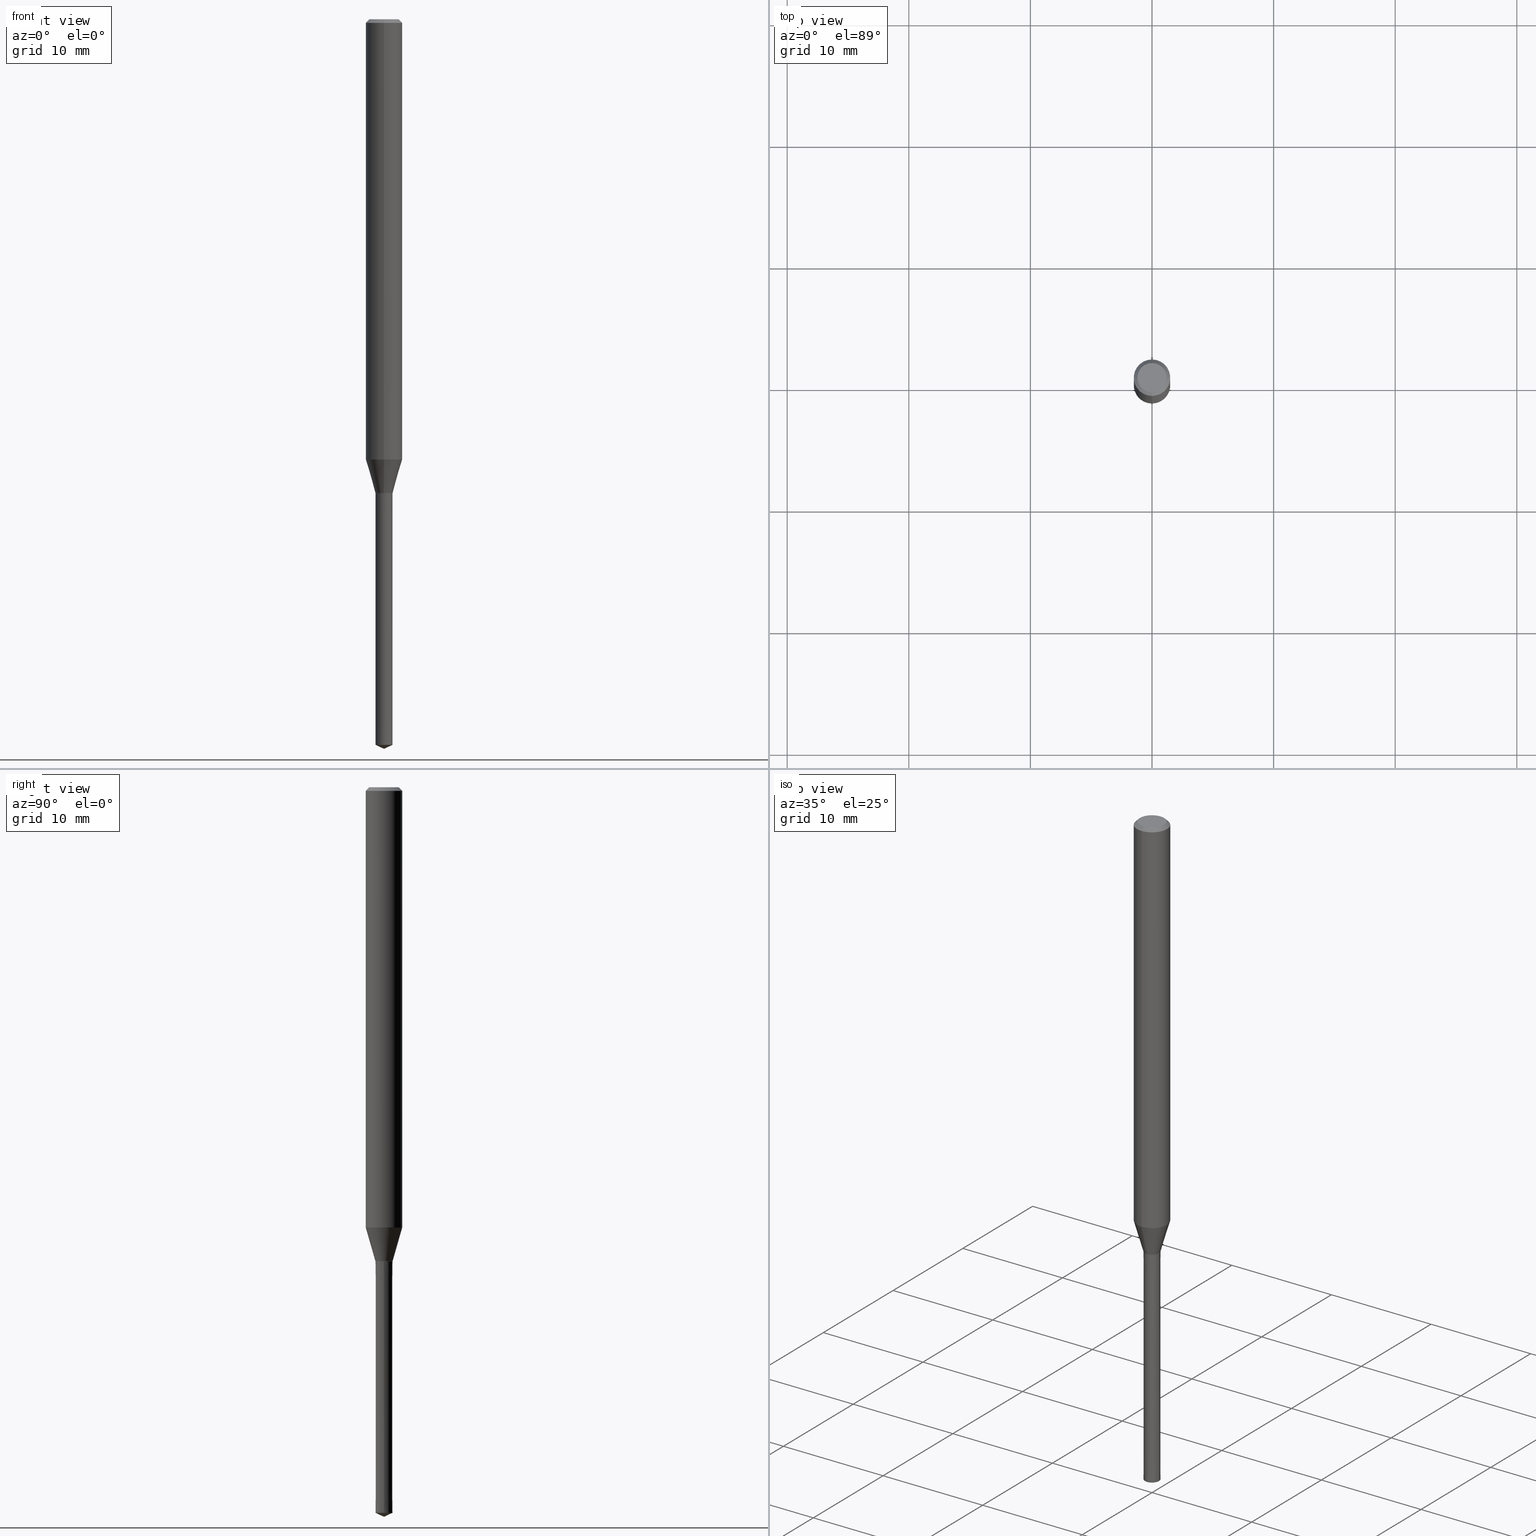
[diagram: canonical four-view strip — front | top / right | iso, engineering-drawing reading convention]
A machine part, canonical four-view strip (front | top / right | iso — engineering-drawing reading convention). The complete STEP part file that produces these views, byte-faithful:
ISO-10303-21;
HEADER;
FILE_DESCRIPTION(('no description'),'unknown implementation level');
FILE_NAME('UTDLX2140-210-Huellk.stp','  ',('CIMSOURCE GmbH'),('CADClick - KiM GmbH - www.kimweb.de'),'unknown preprocess','ACIS','unknown authorization');
FILE_SCHEMA(('automotive_design'));
ENDSEC;
DATA;
#1=MECHANICAL_DESIGN_GEOMETRIC_PRESENTATION_REPRESENTATION(' ',(#14,#15,#16,#17,#18,#19,#20,#21,#22,#23,#24,#25,#26,#27,#28,#29,#30,#31,#32,#33,#34,#35,#36,#37,#38,#39,#40,#41,#42,#43,#44,#45,#46,#47,#48,#49,#50,#51,#52,#53,#54,#55,#56,#57,#58,#59,#60,#61,#62,#63,#64,#65,#66,#67,#68,#69,#70,#71),#10);
#2=PRODUCT_DEFINITION_CONTEXT('',#72,'design');
#3=APPLICATION_PROTOCOL_DEFINITION('INTERNATIONAL STANDARD','automotive_design',1994,#72);
#4=PRODUCT_CATEGORY_RELATIONSHIP('NONE','NONE',#73,#74);
#5=SHAPE_DEFINITION_REPRESENTATION(#75,#76);
#6=PRODUCT_DEFINITION_CONTEXT('',#77,'design');
#7=APPLICATION_PROTOCOL_DEFINITION('INTERNATIONAL STANDARD','automotive_design',1994,#77);
#8=PRODUCT_CATEGORY_RELATIONSHIP('NONE','NONE',#78,#79);
#9=SHAPE_DEFINITION_REPRESENTATION(#80,#81);
#10= (GEOMETRIC_REPRESENTATION_CONTEXT(3)GLOBAL_UNCERTAINTY_ASSIGNED_CONTEXT((#84))GLOBAL_UNIT_ASSIGNED_CONTEXT((#86,#87,#88))REPRESENTATION_CONTEXT('NONE','WORKSPACE'));
#14=STYLED_ITEM('',(#90),#91);
#15=STYLED_ITEM('',(#92),#93);
#16=STYLED_ITEM('',(#94),#95);
#17=STYLED_ITEM('',(#96),#97);
#18=STYLED_ITEM('',(#98),#99);
#19=STYLED_ITEM('',(#100),#101);
#20=STYLED_ITEM('',(#102),#103);
#21=STYLED_ITEM('',(#104),#105);
#22=STYLED_ITEM('',(#106),#107);
#23=STYLED_ITEM('',(#108),#109);
#24=STYLED_ITEM('',(#110),#111);
#25=STYLED_ITEM('',(#112),#113);
#26=STYLED_ITEM('',(#114),#115);
#27=STYLED_ITEM('',(#116),#117);
#28=STYLED_ITEM('',(#118),#119);
#29=STYLED_ITEM('',(#120),#121);
#30=STYLED_ITEM('',(#122),#123);
#31=STYLED_ITEM('',(#124),#125);
#32=STYLED_ITEM('',(#126),#127);
#33=STYLED_ITEM('',(#128),#129);
#34=STYLED_ITEM('',(#130),#131);
#35=STYLED_ITEM('',(#132),#133);
#36=STYLED_ITEM('',(#134),#135);
#37=STYLED_ITEM('',(#136),#137);
#38=STYLED_ITEM('',(#138),#139);
#39=STYLED_ITEM('',(#140),#141);
#40=STYLED_ITEM('',(#142),#143);
#41=STYLED_ITEM('',(#144),#145);
#42=STYLED_ITEM('',(#146),#147);
#43=STYLED_ITEM('',(#148),#149);
#44=STYLED_ITEM('',(#150),#151);
#45=STYLED_ITEM('',(#152),#153);
#46=STYLED_ITEM('',(#154),#155);
#47=STYLED_ITEM('',(#156),#157);
#48=STYLED_ITEM('',(#158),#159);
#49=STYLED_ITEM('',(#160),#161);
#50=STYLED_ITEM('',(#162),#163);
#51=STYLED_ITEM('',(#164),#165);
#52=STYLED_ITEM('',(#166),#167);
#53=STYLED_ITEM('',(#168),#169);
#54=STYLED_ITEM('',(#170),#171);
#55=STYLED_ITEM('',(#172),#173);
#56=STYLED_ITEM('',(#174),#175);
#57=STYLED_ITEM('',(#176),#177);
#58=STYLED_ITEM('',(#178),#179);
#59=STYLED_ITEM('',(#180),#181);
#60=STYLED_ITEM('',(#182),#183);
#61=STYLED_ITEM('',(#184),#185);
#62=STYLED_ITEM('',(#186),#187);
#63=STYLED_ITEM('',(#188),#189);
#64=STYLED_ITEM('',(#190),#191);
#65=STYLED_ITEM('',(#192),#193);
#66=STYLED_ITEM('',(#194),#195);
#67=STYLED_ITEM('',(#196),#197);
#68=STYLED_ITEM('',(#198),#199);
#69=STYLED_ITEM('',(#200),#201);
#70=STYLED_ITEM('',(#202),#203);
#71=STYLED_ITEM('',(#204),#205);
#72=APPLICATION_CONTEXT(' ');
#73=PRODUCT_CATEGORY('part','NONE');
#74=PRODUCT_RELATED_PRODUCT_CATEGORY('detail',' ',(#206));
#75=PRODUCT_DEFINITION_SHAPE('NONE','NONE',#207);
#76=ADVANCED_BREP_SHAPE_REPRESENTATION('1',(#115,#208),#10);
#77=APPLICATION_CONTEXT(' ');
#78=PRODUCT_CATEGORY('part','NONE');
#79=PRODUCT_RELATED_PRODUCT_CATEGORY('detail',' ',(#209));
#80=PRODUCT_DEFINITION_SHAPE('NONE','NONE',#210);
#81=ADVANCED_BREP_SHAPE_REPRESENTATION('2',(#113,#211),#10);
#84=UNCERTAINTY_MEASURE_WITH_UNIT(LENGTH_MEASURE(1.0E-006),#86,'','');
#86= (CONVERSION_BASED_UNIT('MILLIMETRE',#214)LENGTH_UNIT()NAMED_UNIT(#217));
#87= (NAMED_UNIT(#219)PLANE_ANGLE_UNIT()SI_UNIT($,.RADIAN.));
#88= (NAMED_UNIT(#219)SOLID_ANGLE_UNIT()SI_UNIT($,.STERADIAN.));
#90=PRESENTATION_STYLE_ASSIGNMENT((#225));
#91=EDGE_CURVE('',#167,#139,#226,.T.);
#92=PRESENTATION_STYLE_ASSIGNMENT((#227));
#93=EDGE_CURVE('',#161,#123,#228,.T.);
#94=PRESENTATION_STYLE_ASSIGNMENT((#229));
#95=EDGE_CURVE('',#161,#135,#230,.T.);
#96=PRESENTATION_STYLE_ASSIGNMENT((#231));
#97=ADVANCED_FACE('',(#232),#233,.T.);
#98=PRESENTATION_STYLE_ASSIGNMENT((#234));
#99=VERTEX_POINT('',#235);
#100=PRESENTATION_STYLE_ASSIGNMENT((#236));
#101=VERTEX_POINT('',#237);
#102=PRESENTATION_STYLE_ASSIGNMENT((#238));
#103=EDGE_CURVE('',#139,#129,#239,.T.);
#104=PRESENTATION_STYLE_ASSIGNMENT((#240));
#105=ADVANCED_FACE('',(#241),#242,.T.);
#106=PRESENTATION_STYLE_ASSIGNMENT((#243));
#107=EDGE_CURVE('',#99,#169,#244,.T.);
#108=PRESENTATION_STYLE_ASSIGNMENT((#245));
#109=ADVANCED_FACE('',(#246),#247,.T.);
#110=PRESENTATION_STYLE_ASSIGNMENT((#248));
#111=ADVANCED_FACE('',(#249),#250,.T.);
#112=PRESENTATION_STYLE_ASSIGNMENT((#251));
#113=MANIFOLD_SOLID_BREP('2',#252);
#114=PRESENTATION_STYLE_ASSIGNMENT((#253));
#115=MANIFOLD_SOLID_BREP('1',#254);
#116=PRESENTATION_STYLE_ASSIGNMENT((#255));
#117=ADVANCED_FACE('',(#256),#257,.T.);
#118=PRESENTATION_STYLE_ASSIGNMENT((#258));
#119=EDGE_CURVE('',#101,#129,#259,.T.);
#120=PRESENTATION_STYLE_ASSIGNMENT((#260));
#121=EDGE_CURVE('',#99,#201,#261,.T.);
#122=PRESENTATION_STYLE_ASSIGNMENT((#262));
#123=VERTEX_POINT('',#263);
#124=PRESENTATION_STYLE_ASSIGNMENT((#264));
#125=ADVANCED_FACE('',(#265),#266,.T.);
#126=PRESENTATION_STYLE_ASSIGNMENT((#267));
#127=EDGE_CURVE('',#129,#155,#268,.T.);
#128=PRESENTATION_STYLE_ASSIGNMENT((#269));
#129=VERTEX_POINT('',#270);
#130=PRESENTATION_STYLE_ASSIGNMENT((#271));
#131=EDGE_CURVE('',#157,#123,#272,.T.);
#132=PRESENTATION_STYLE_ASSIGNMENT((#273));
#133=ADVANCED_FACE('',(#274),#275,.T.);
#134=PRESENTATION_STYLE_ASSIGNMENT((#276));
#135=VERTEX_POINT('',#277);
#136=PRESENTATION_STYLE_ASSIGNMENT((#278));
#137=EDGE_CURVE('',#123,#161,#279,.T.);
#138=PRESENTATION_STYLE_ASSIGNMENT((#280));
#139=VERTEX_POINT('',#281);
#140=PRESENTATION_STYLE_ASSIGNMENT((#282));
#141=EDGE_CURVE('',#167,#155,#283,.T.);
#142=PRESENTATION_STYLE_ASSIGNMENT((#284));
#143=ADVANCED_FACE('',(#285),#286,.T.);
#144=PRESENTATION_STYLE_ASSIGNMENT((#287));
#145=EDGE_CURVE('',#139,#159,#288,.T.);
#146=PRESENTATION_STYLE_ASSIGNMENT((#289));
#147=EDGE_CURVE('',#201,#99,#290,.T.);
#148=PRESENTATION_STYLE_ASSIGNMENT((#291));
#149=EDGE_CURVE('',#165,#169,#292,.T.);
#150=PRESENTATION_STYLE_ASSIGNMENT((#293));
#151=ADVANCED_FACE('',(#294),#295,.T.);
#152=PRESENTATION_STYLE_ASSIGNMENT((#296));
#153=ADVANCED_FACE('',(#297),#298,.T.);
#154=PRESENTATION_STYLE_ASSIGNMENT((#299));
#155=VERTEX_POINT('',#300);
#156=PRESENTATION_STYLE_ASSIGNMENT((#301));
#157=VERTEX_POINT('',#302);
#158=PRESENTATION_STYLE_ASSIGNMENT((#303));
#159=VERTEX_POINT('',#304);
#160=PRESENTATION_STYLE_ASSIGNMENT((#305));
#161=VERTEX_POINT('',#306);
#162=PRESENTATION_STYLE_ASSIGNMENT((#307));
#163=EDGE_CURVE('',#101,#159,#308,.T.);
#164=PRESENTATION_STYLE_ASSIGNMENT((#309));
#165=VERTEX_POINT('',#310);
#166=PRESENTATION_STYLE_ASSIGNMENT((#311));
#167=VERTEX_POINT('',#312);
#168=PRESENTATION_STYLE_ASSIGNMENT((#313));
#169=VERTEX_POINT('',#314);
#170=PRESENTATION_STYLE_ASSIGNMENT((#315));
#171=EDGE_CURVE('',#129,#139,#316,.T.);
#172=PRESENTATION_STYLE_ASSIGNMENT((#317));
#173=EDGE_CURVE('',#159,#161,#318,.T.);
#174=PRESENTATION_STYLE_ASSIGNMENT((#319));
#175=EDGE_CURVE('',#135,#157,#320,.T.);
#176=PRESENTATION_STYLE_ASSIGNMENT((#321));
#177=ADVANCED_FACE('',(#322),#323,.T.);
#178=PRESENTATION_STYLE_ASSIGNMENT((#324));
#179=ADVANCED_FACE('',(#325),#326,.T.);
#180=PRESENTATION_STYLE_ASSIGNMENT((#327));
#181=ADVANCED_FACE('',(#328),#329,.T.);
#182=PRESENTATION_STYLE_ASSIGNMENT((#330));
#183=ADVANCED_FACE('',(#331),#332,.T.);
#184=PRESENTATION_STYLE_ASSIGNMENT((#333));
#185=EDGE_CURVE('',#157,#135,#334,.T.);
#186=PRESENTATION_STYLE_ASSIGNMENT((#335));
#187=EDGE_CURVE('',#165,#201,#336,.T.);
#188=PRESENTATION_STYLE_ASSIGNMENT((#337));
#189=EDGE_CURVE('',#159,#101,#338,.T.);
#190=PRESENTATION_STYLE_ASSIGNMENT((#339));
#191=ADVANCED_FACE('',(#340),#341,.T.);
#192=PRESENTATION_STYLE_ASSIGNMENT((#342));
#193=VERTEX_POINT('',#343);
#194=PRESENTATION_STYLE_ASSIGNMENT((#344));
#195=EDGE_CURVE('',#201,#193,#345,.T.);
#196=PRESENTATION_STYLE_ASSIGNMENT((#346));
#197=EDGE_CURVE('',#193,#99,#347,.T.);
#198=PRESENTATION_STYLE_ASSIGNMENT((#348));
#199=EDGE_CURVE('',#155,#167,#349,.T.);
#200=PRESENTATION_STYLE_ASSIGNMENT((#350));
#201=VERTEX_POINT('',#351);
#202=PRESENTATION_STYLE_ASSIGNMENT((#352));
#203=EDGE_CURVE('',#123,#101,#353,.T.);
#204=PRESENTATION_STYLE_ASSIGNMENT((#354));
#205=EDGE_CURVE('',#169,#165,#355,.T.);
#206=PRODUCT('1','1','PART-1-DESC',(#356));
#207=PRODUCT_DEFINITION('NONE','NONE',#357,#2);
#208=AXIS2_PLACEMENT_3D('',#358,#359,#360);
#209=PRODUCT('2','2','PART-2-DESC',(#361));
#210=PRODUCT_DEFINITION('NONE','NONE',#362,#6);
#211=AXIS2_PLACEMENT_3D('',#363,#364,#365);
#214=LENGTH_MEASURE_WITH_UNIT(LENGTH_MEASURE(1.0),#366);
#217=DIMENSIONAL_EXPONENTS(1.0,0.0,0.0,0.0,0.0,0.0,0.0);
#219=DIMENSIONAL_EXPONENTS(0.0,0.0,0.0,0.0,0.0,0.0,0.0);
#225=CURVE_STYLE('',#367,POSITIVE_LENGTH_MEASURE(1.0E-006),#368);
#226=LINE('',#369,#370);
#227=CURVE_STYLE('',#371,POSITIVE_LENGTH_MEASURE(1.0E-006),#372);
#228=CIRCLE('',#373,1.5);
#229=CURVE_STYLE('',#374,POSITIVE_LENGTH_MEASURE(1.0E-006),#375);
#230=LINE('',#376,#377);
#231=SURFACE_STYLE_USAGE(.BOTH.,#378);
#232=FACE_OUTER_BOUND('',#379,.T.);
#233=CONICAL_SURFACE('',#380,0.7005,4.83709050284995E-005);
#234=POINT_STYLE(' ',#381,POSITIVE_LENGTH_MEASURE(1.0E-006),#382);
#235=CARTESIAN_POINT('',(0.7,8.57224447675664E-017,-59.67358464));
#236=POINT_STYLE(' ',#383,POSITIVE_LENGTH_MEASURE(1.0E-006),#384);
#237=CARTESIAN_POINT('',(0.0,1.5,-36.21));
#238=CURVE_STYLE('',#385,POSITIVE_LENGTH_MEASURE(1.0E-006),#386);
#239=CIRCLE('',#387,0.7);
#240=SURFACE_STYLE_USAGE(.BOTH.,#388);
#241=FACE_OUTER_BOUND('',#389,.T.);
#242=CONICAL_SURFACE('',#390,1.1,0.279328446503135);
#243=CURVE_STYLE('',#391,POSITIVE_LENGTH_MEASURE(1.0E-006),#392);
#244=LINE('',#393,#394);
#245=SURFACE_STYLE_USAGE(.BOTH.,#395);
#246=FACE_OUTER_BOUND('',#396,.T.);
#247=PLANE('',#397);
#248=SURFACE_STYLE_USAGE(.BOTH.,#398);
#249=FACE_OUTER_BOUND('',#399,.T.);
#250=CONICAL_SURFACE('',#400,0.35,1.13446401462768);
#251=SURFACE_STYLE_USAGE(.BOTH.,#401);
#252=CLOSED_SHELL('',(#111,#97,#153,#191,#143));
#253=SURFACE_STYLE_USAGE(.BOTH.,#402);
#254=CLOSED_SHELL('',(#125,#105,#181,#183,#109,#177,#133,#179,#151,#117));
#255=SURFACE_STYLE_USAGE(.BOTH.,#403);
#256=FACE_OUTER_BOUND('',#404,.T.);
#257=PLANE('',#405);
#258=CURVE_STYLE('',#406,POSITIVE_LENGTH_MEASURE(1.0E-006),#407);
#259=LINE('',#408,#409);
#260=CURVE_STYLE('',#410,POSITIVE_LENGTH_MEASURE(1.0E-006),#411);
#261=CIRCLE('',#412,0.7);
#262=POINT_STYLE(' ',#413,POSITIVE_LENGTH_MEASURE(1.0E-006),#414);
#263=CARTESIAN_POINT('',(0.0,1.5,-0.299999999999997));
#264=SURFACE_STYLE_USAGE(.BOTH.,#415);
#265=FACE_OUTER_BOUND('',#416,.T.);
#266=CONICAL_SURFACE('',#417,0.70025,0.523598775598234);
#267=CURVE_STYLE('',#418,POSITIVE_LENGTH_MEASURE(1.0E-006),#419);
#268=LINE('',#420,#421);
#269=POINT_STYLE(' ',#422,POSITIVE_LENGTH_MEASURE(1.0E-006),#423);
#270=CARTESIAN_POINT('',(0.0,0.7,-38.9991339745962));
#271=CURVE_STYLE('',#424,POSITIVE_LENGTH_MEASURE(1.0E-006),#425);
#272=LINE('',#426,#427);
#273=SURFACE_STYLE_USAGE(.BOTH.,#428);
#274=FACE_OUTER_BOUND('',#429,.T.);
#275=CYLINDRICAL_SURFACE('',#430,1.5);
#276=POINT_STYLE(' ',#431,POSITIVE_LENGTH_MEASURE(1.0E-006),#432);
#277=CARTESIAN_POINT('',(1.46952762458685E-016,-1.2,0.0));
#278=CURVE_STYLE('',#433,POSITIVE_LENGTH_MEASURE(1.0E-006),#434);
#279=CIRCLE('',#435,1.5);
#280=POINT_STYLE(' ',#436,POSITIVE_LENGTH_MEASURE(1.0E-006),#437);
#281=CARTESIAN_POINT('',(8.57224447675664E-017,-0.7,-38.9991339745962));
#282=CURVE_STYLE('',#438,POSITIVE_LENGTH_MEASURE(1.0E-006),#439);
#283=CIRCLE('',#440,0.7005);
#284=SURFACE_STYLE_USAGE(.BOTH.,#441);
#285=FACE_OUTER_BOUND('',#442,.T.);
#286=CONICAL_SURFACE('',#443,0.35,1.13446401462768);
#287=CURVE_STYLE('',#444,POSITIVE_LENGTH_MEASURE(1.0E-006),#445);
#288=LINE('',#446,#447);
#289=CURVE_STYLE('',#448,POSITIVE_LENGTH_MEASURE(1.0E-006),#449);
#290=CIRCLE('',#450,0.7);
#291=CURVE_STYLE('',#451,POSITIVE_LENGTH_MEASURE(1.0E-006),#452);
#292=CIRCLE('',#453,0.701);
#293=SURFACE_STYLE_USAGE(.BOTH.,#454);
#294=FACE_OUTER_BOUND('',#455,.T.);
#295=CONICAL_SURFACE('',#456,0.70025,0.523598775598234);
#296=SURFACE_STYLE_USAGE(.BOTH.,#457);
#297=FACE_OUTER_BOUND('',#458,.T.);
#298=PLANE('',#459);
#299=POINT_STYLE(' ',#460,POSITIVE_LENGTH_MEASURE(1.0E-006),#461);
#300=CARTESIAN_POINT('',(0.0,0.7005,-39.0));
#301=POINT_STYLE(' ',#462,POSITIVE_LENGTH_MEASURE(1.0E-006),#463);
#302=CARTESIAN_POINT('',(0.0,1.2,0.0));
#303=POINT_STYLE(' ',#464,POSITIVE_LENGTH_MEASURE(1.0E-006),#465);
#304=CARTESIAN_POINT('',(1.83690953073357E-016,-1.5,-36.21));
#305=POINT_STYLE(' ',#466,POSITIVE_LENGTH_MEASURE(1.0E-006),#467);
#306=CARTESIAN_POINT('',(1.83690953073357E-016,-1.5,-0.299999999999997));
#307=CURVE_STYLE('',#468,POSITIVE_LENGTH_MEASURE(1.0E-006),#469);
#308=CIRCLE('',#470,1.5);
#309=POINT_STYLE(' ',#471,POSITIVE_LENGTH_MEASURE(1.0E-006),#472);
#310=CARTESIAN_POINT('',(-0.701,0.0,-39.0));
#311=POINT_STYLE(' ',#473,POSITIVE_LENGTH_MEASURE(1.0E-006),#474);
#312=CARTESIAN_POINT('',(8.57836750852575E-017,-0.7005,-39.0));
#313=POINT_STYLE(' ',#475,POSITIVE_LENGTH_MEASURE(1.0E-006),#476);
#314=CARTESIAN_POINT('',(0.701,8.58449054029486E-017,-39.0));
#315=CURVE_STYLE('',#477,POSITIVE_LENGTH_MEASURE(1.0E-006),#478);
#316=CIRCLE('',#479,0.7);
#317=CURVE_STYLE('',#480,POSITIVE_LENGTH_MEASURE(1.0E-006),#481);
#318=LINE('',#482,#483);
#319=CURVE_STYLE('',#484,POSITIVE_LENGTH_MEASURE(1.0E-006),#485);
#320=CIRCLE('',#486,1.2);
#321=SURFACE_STYLE_USAGE(.BOTH.,#487);
#322=FACE_OUTER_BOUND('',#488,.T.);
#323=CONICAL_SURFACE('',#489,1.35,0.785398163397453);
#324=SURFACE_STYLE_USAGE(.BOTH.,#490);
#325=FACE_OUTER_BOUND('',#491,.T.);
#326=CONICAL_SURFACE('',#492,1.1,0.279328446503135);
#327=SURFACE_STYLE_USAGE(.BOTH.,#493);
#328=FACE_OUTER_BOUND('',#494,.T.);
#329=CYLINDRICAL_SURFACE('',#495,1.5);
#330=SURFACE_STYLE_USAGE(.BOTH.,#496);
#331=FACE_OUTER_BOUND('',#497,.T.);
#332=CONICAL_SURFACE('',#498,1.35,0.785398163397453);
#333=CURVE_STYLE('',#499,POSITIVE_LENGTH_MEASURE(1.0E-006),#500);
#334=CIRCLE('',#501,1.2);
#335=CURVE_STYLE('',#502,POSITIVE_LENGTH_MEASURE(1.0E-006),#503);
#336=LINE('',#504,#505);
#337=CURVE_STYLE('',#506,POSITIVE_LENGTH_MEASURE(1.0E-006),#507);
#338=CIRCLE('',#508,1.5);
#339=SURFACE_STYLE_USAGE(.BOTH.,#509);
#340=FACE_OUTER_BOUND('',#510,.T.);
#341=CONICAL_SURFACE('',#511,0.7005,4.83709050284995E-005);
#342=POINT_STYLE(' ',#512,POSITIVE_LENGTH_MEASURE(1.0E-006),#513);
#343=CARTESIAN_POINT('',(0.0,0.0,-60.0));
#344=CURVE_STYLE('',#514,POSITIVE_LENGTH_MEASURE(1.0E-006),#515);
#345=LINE('',#516,#517);
#346=CURVE_STYLE('',#518,POSITIVE_LENGTH_MEASURE(1.0E-006),#519);
#347=LINE('',#520,#521);
#348=CURVE_STYLE('',#522,POSITIVE_LENGTH_MEASURE(1.0E-006),#523);
#349=CIRCLE('',#524,0.7005);
#350=POINT_STYLE(' ',#525,POSITIVE_LENGTH_MEASURE(1.0E-006),#526);
#351=CARTESIAN_POINT('',(-0.7,0.0,-59.67358464));
#352=CURVE_STYLE('',#527,POSITIVE_LENGTH_MEASURE(1.0E-006),#528);
#353=LINE('',#529,#530);
#354=CURVE_STYLE('',#531,POSITIVE_LENGTH_MEASURE(1.0E-006),#532);
#355=CIRCLE('',#533,0.701);
#356=PRODUCT_CONTEXT('',#72,'mechanical');
#357=PRODUCT_DEFINITION_FORMATION_WITH_SPECIFIED_SOURCE(' ','NONE',#206,.NOT_KNOWN.);
#358=CARTESIAN_POINT('',(0.0,0.0,0.0));
#359=DIRECTION('',(0.0,0.0,1.0));
#360=DIRECTION('',(1.0,0.0,0.0));
#361=PRODUCT_CONTEXT('',#77,'mechanical');
#362=PRODUCT_DEFINITION_FORMATION_WITH_SPECIFIED_SOURCE(' ','NONE',#209,.NOT_KNOWN.);
#363=CARTESIAN_POINT('',(0.0,0.0,0.0));
#364=DIRECTION('',(0.0,0.0,1.0));
#365=DIRECTION('',(1.0,0.0,0.0));
#366= (NAMED_UNIT(#217)LENGTH_UNIT()SI_UNIT(.MILLI.,.METRE.));
#367=DRAUGHTING_PRE_DEFINED_CURVE_FONT('continuous');
#368=COLOUR_RGB('',0.498039215803146,0.498039215803146,0.498039215803146);
#369=CARTESIAN_POINT('',(8.5753059926412E-017,-0.70025,-38.9995669872981));
#370=VECTOR('',#535,1.0);
#371=DRAUGHTING_PRE_DEFINED_CURVE_FONT('continuous');
#372=COLOUR_RGB('',0.498039215803146,0.498039215803146,0.498039215803146);
#373=AXIS2_PLACEMENT_3D('',#536,#537,#538);
#374=DRAUGHTING_PRE_DEFINED_CURVE_FONT('continuous');
#375=COLOUR_RGB('',0.498039215803146,0.498039215803146,0.498039215803146);
#376=CARTESIAN_POINT('',(1.65321857766021E-016,-1.35,-0.149999999999999));
#377=VECTOR('',#539,1.0);
#378=SURFACE_SIDE_STYLE('',(#540));
#379=EDGE_LOOP('',(#541,#542,#543,#544));
#380=AXIS2_PLACEMENT_3D('',#545,#546,#547);
#381=PRE_DEFINED_MARKER('');
#382=COLOUR_RGB('',0.800000011920929,0.800000011920929,0.800000011920929);
#383=PRE_DEFINED_MARKER('');
#384=COLOUR_RGB('',0.498039215803146,0.498039215803146,0.498039215803146);
#385=DRAUGHTING_PRE_DEFINED_CURVE_FONT('continuous');
#386=COLOUR_RGB('',0.498039215803146,0.498039215803146,0.498039215803146);
#387=AXIS2_PLACEMENT_3D('',#548,#549,#550);
#388=SURFACE_SIDE_STYLE('',(#551));
#389=EDGE_LOOP('',(#552,#553,#554,#555));
#390=AXIS2_PLACEMENT_3D('',#556,#557,#558);
#391=DRAUGHTING_PRE_DEFINED_CURVE_FONT('continuous');
#392=COLOUR_RGB('',0.800000011920929,0.800000011920929,0.800000011920929);
#393=CARTESIAN_POINT('',(0.7005,8.57836750852575E-017,-49.33679232));
#394=VECTOR('',#559,1.0);
#395=SURFACE_SIDE_STYLE('',(#560));
#396=EDGE_LOOP('',(#561,#562));
#397=AXIS2_PLACEMENT_3D('',#563,#564,#565);
#398=SURFACE_SIDE_STYLE('',(#566));
#399=EDGE_LOOP('',(#567,#568,#569));
#400=AXIS2_PLACEMENT_3D('',#570,#571,#572);
#401=SURFACE_SIDE_STYLE('',(#573));
#402=SURFACE_SIDE_STYLE('',(#574));
#403=SURFACE_SIDE_STYLE('',(#575));
#404=EDGE_LOOP('',(#576,#577));
#405=AXIS2_PLACEMENT_3D('',#578,#579,#580);
#406=DRAUGHTING_PRE_DEFINED_CURVE_FONT('continuous');
#407=COLOUR_RGB('',0.498039215803146,0.498039215803146,0.498039215803146);
#408=CARTESIAN_POINT('',(-1.34706698920461E-016,1.1,-37.6045669872981));
#409=VECTOR('',#581,1.0);
#410=DRAUGHTING_PRE_DEFINED_CURVE_FONT('continuous');
#411=COLOUR_RGB('',0.800000011920929,0.800000011920929,0.800000011920929);
#412=AXIS2_PLACEMENT_3D('',#582,#583,#584);
#413=PRE_DEFINED_MARKER('');
#414=COLOUR_RGB('',0.498039215803146,0.498039215803146,0.498039215803146);
#415=SURFACE_SIDE_STYLE('',(#585));
#416=EDGE_LOOP('',(#586,#587,#588,#589));
#417=AXIS2_PLACEMENT_3D('',#590,#591,#592);
#418=DRAUGHTING_PRE_DEFINED_CURVE_FONT('continuous');
#419=COLOUR_RGB('',0.498039215803146,0.498039215803146,0.498039215803146);
#420=CARTESIAN_POINT('',(-8.5753059926412E-017,0.70025,-38.9995669872981));
#421=VECTOR('',#593,1.0);
#422=PRE_DEFINED_MARKER('');
#423=COLOUR_RGB('',0.498039215803146,0.498039215803146,0.498039215803146);
#424=DRAUGHTING_PRE_DEFINED_CURVE_FONT('continuous');
#425=COLOUR_RGB('',0.498039215803146,0.498039215803146,0.498039215803146);
#426=CARTESIAN_POINT('',(-1.65321857766021E-016,1.35,-0.149999999999999));
#427=VECTOR('',#594,1.0);
#428=SURFACE_SIDE_STYLE('',(#595));
#429=EDGE_LOOP('',(#596,#597,#598,#599));
#430=AXIS2_PLACEMENT_3D('',#600,#601,#602);
#431=PRE_DEFINED_MARKER('');
#432=COLOUR_RGB('',0.498039215803146,0.498039215803146,0.498039215803146);
#433=DRAUGHTING_PRE_DEFINED_CURVE_FONT('continuous');
#434=COLOUR_RGB('',0.498039215803146,0.498039215803146,0.498039215803146);
#435=AXIS2_PLACEMENT_3D('',#603,#604,#605);
#436=PRE_DEFINED_MARKER('');
#437=COLOUR_RGB('',0.498039215803146,0.498039215803146,0.498039215803146);
#438=DRAUGHTING_PRE_DEFINED_CURVE_FONT('continuous');
#439=COLOUR_RGB('',0.498039215803146,0.498039215803146,0.498039215803146);
#440=AXIS2_PLACEMENT_3D('',#606,#607,#608);
#441=SURFACE_SIDE_STYLE('',(#609));
#442=EDGE_LOOP('',(#610,#611,#612));
#443=AXIS2_PLACEMENT_3D('',#613,#614,#615);
#444=DRAUGHTING_PRE_DEFINED_CURVE_FONT('continuous');
#445=COLOUR_RGB('',0.498039215803146,0.498039215803146,0.498039215803146);
#446=CARTESIAN_POINT('',(1.34706698920461E-016,-1.1,-37.6045669872981));
#447=VECTOR('',#616,1.0);
#448=DRAUGHTING_PRE_DEFINED_CURVE_FONT('continuous');
#449=COLOUR_RGB('',0.800000011920929,0.800000011920929,0.800000011920929);
#450=AXIS2_PLACEMENT_3D('',#617,#618,#619);
#451=DRAUGHTING_PRE_DEFINED_CURVE_FONT('continuous');
#452=COLOUR_RGB('',0.800000011920929,0.800000011920929,0.800000011920929);
#453=AXIS2_PLACEMENT_3D('',#620,#621,#622);
#454=SURFACE_SIDE_STYLE('',(#623));
#455=EDGE_LOOP('',(#624,#625,#626,#627));
#456=AXIS2_PLACEMENT_3D('',#628,#629,#630);
#457=SURFACE_SIDE_STYLE('',(#631));
#458=EDGE_LOOP('',(#632,#633));
#459=AXIS2_PLACEMENT_3D('',#634,#635,#636);
#460=PRE_DEFINED_MARKER('');
#461=COLOUR_RGB('',0.498039215803146,0.498039215803146,0.498039215803146);
#462=PRE_DEFINED_MARKER('');
#463=COLOUR_RGB('',0.498039215803146,0.498039215803146,0.498039215803146);
#464=PRE_DEFINED_MARKER('');
#465=COLOUR_RGB('',0.498039215803146,0.498039215803146,0.498039215803146);
#466=PRE_DEFINED_MARKER('');
#467=COLOUR_RGB('',0.498039215803146,0.498039215803146,0.498039215803146);
#468=DRAUGHTING_PRE_DEFINED_CURVE_FONT('continuous');
#469=COLOUR_RGB('',0.498039215803146,0.498039215803146,0.498039215803146);
#470=AXIS2_PLACEMENT_3D('',#637,#638,#639);
#471=PRE_DEFINED_MARKER('');
#472=COLOUR_RGB('',0.800000011920929,0.800000011920929,0.800000011920929);
#473=PRE_DEFINED_MARKER('');
#474=COLOUR_RGB('',0.498039215803146,0.498039215803146,0.498039215803146);
#475=PRE_DEFINED_MARKER('');
#476=COLOUR_RGB('',0.800000011920929,0.800000011920929,0.800000011920929);
#477=DRAUGHTING_PRE_DEFINED_CURVE_FONT('continuous');
#478=COLOUR_RGB('',0.498039215803146,0.498039215803146,0.498039215803146);
#479=AXIS2_PLACEMENT_3D('',#640,#641,#642);
#480=DRAUGHTING_PRE_DEFINED_CURVE_FONT('continuous');
#481=COLOUR_RGB('',0.498039215803146,0.498039215803146,0.498039215803146);
#482=CARTESIAN_POINT('',(1.83690953073357E-016,-1.5,-18.255));
#483=VECTOR('',#643,1.0);
#484=DRAUGHTING_PRE_DEFINED_CURVE_FONT('continuous');
#485=COLOUR_RGB('',0.498039215803146,0.498039215803146,0.498039215803146);
#486=AXIS2_PLACEMENT_3D('',#644,#645,#646);
#487=SURFACE_SIDE_STYLE('',(#647));
#488=EDGE_LOOP('',(#648,#649,#650,#651));
#489=AXIS2_PLACEMENT_3D('',#652,#653,#654);
#490=SURFACE_SIDE_STYLE('',(#655));
#491=EDGE_LOOP('',(#656,#657,#658,#659));
#492=AXIS2_PLACEMENT_3D('',#660,#661,#662);
#493=SURFACE_SIDE_STYLE('',(#663));
#494=EDGE_LOOP('',(#664,#665,#666,#667));
#495=AXIS2_PLACEMENT_3D('',#668,#669,#670);
#496=SURFACE_SIDE_STYLE('',(#671));
#497=EDGE_LOOP('',(#672,#673,#674,#675));
#498=AXIS2_PLACEMENT_3D('',#676,#677,#678);
#499=DRAUGHTING_PRE_DEFINED_CURVE_FONT('continuous');
#500=COLOUR_RGB('',0.498039215803146,0.498039215803146,0.498039215803146);
#501=AXIS2_PLACEMENT_3D('',#679,#680,#681);
#502=DRAUGHTING_PRE_DEFINED_CURVE_FONT('continuous');
#503=COLOUR_RGB('',0.800000011920929,0.800000011920929,0.800000011920929);
#504=CARTESIAN_POINT('',(-0.7005,-8.57836750852575E-017,-49.33679232));
#505=VECTOR('',#682,1.0);
#506=DRAUGHTING_PRE_DEFINED_CURVE_FONT('continuous');
#507=COLOUR_RGB('',0.498039215803146,0.498039215803146,0.498039215803146);
#508=AXIS2_PLACEMENT_3D('',#683,#684,#685);
#509=SURFACE_SIDE_STYLE('',(#686));
#510=EDGE_LOOP('',(#687,#688,#689,#690));
#511=AXIS2_PLACEMENT_3D('',#691,#692,#693);
#512=PRE_DEFINED_MARKER('');
#513=COLOUR_RGB('',0.800000011920929,0.800000011920929,0.800000011920929);
#514=DRAUGHTING_PRE_DEFINED_CURVE_FONT('continuous');
#515=COLOUR_RGB('',0.800000011920929,0.800000011920929,0.800000011920929);
#516=CARTESIAN_POINT('',(-0.35,-4.28612223837832E-017,-59.83679232));
#517=VECTOR('',#694,1.0);
#518=DRAUGHTING_PRE_DEFINED_CURVE_FONT('continuous');
#519=COLOUR_RGB('',0.800000011920929,0.800000011920929,0.800000011920929);
#520=CARTESIAN_POINT('',(0.35,4.28612223837832E-017,-59.83679232));
#521=VECTOR('',#695,1.0);
#522=DRAUGHTING_PRE_DEFINED_CURVE_FONT('continuous');
#523=COLOUR_RGB('',0.498039215803146,0.498039215803146,0.498039215803146);
#524=AXIS2_PLACEMENT_3D('',#696,#697,#698);
#525=PRE_DEFINED_MARKER('');
#526=COLOUR_RGB('',0.800000011920929,0.800000011920929,0.800000011920929);
#527=DRAUGHTING_PRE_DEFINED_CURVE_FONT('continuous');
#528=COLOUR_RGB('',0.498039215803146,0.498039215803146,0.498039215803146);
#529=CARTESIAN_POINT('',(-1.83690953073357E-016,1.5,-18.255));
#530=VECTOR('',#699,1.0);
#531=DRAUGHTING_PRE_DEFINED_CURVE_FONT('continuous');
#532=COLOUR_RGB('',0.800000011920929,0.800000011920929,0.800000011920929);
#533=AXIS2_PLACEMENT_3D('',#700,#701,#702);
#535=DIRECTION('',(-6.1230317691112E-017,0.499999999999944,0.866025403784471));
#536=CARTESIAN_POINT('',(0.0,0.0,-0.299999999999997));
#537=DIRECTION('',(0.0,0.0,-1.0));
#538=DIRECTION('',(0.0,1.0,0.0));
#539=DIRECTION('',(-8.65927457071939E-017,0.707106781186551,0.707106781186544));
#540=SURFACE_STYLE_FILL_AREA(#703);
#541=ORIENTED_EDGE('',*,*,#187,.F.);
#542=ORIENTED_EDGE('',*,*,#149,.T.);
#543=ORIENTED_EDGE('',*,*,#107,.F.);
#544=ORIENTED_EDGE('',*,*,#147,.F.);
#545=CARTESIAN_POINT('',(0.0,0.0,-49.33679232));
#546=DIRECTION('',(-0.0,-0.0,1.0));
#547=DIRECTION('',(-1.0,0.0,0.0));
#548=CARTESIAN_POINT('',(0.0,0.0,-38.9991339745962));
#549=DIRECTION('',(0.0,0.0,-1.0));
#550=DIRECTION('',(0.0,1.0,0.0));
#551=SURFACE_STYLE_FILL_AREA(#704);
#552=ORIENTED_EDGE('',*,*,#119,.F.);
#553=ORIENTED_EDGE('',*,*,#163,.T.);
#554=ORIENTED_EDGE('',*,*,#145,.F.);
#555=ORIENTED_EDGE('',*,*,#171,.F.);
#556=CARTESIAN_POINT('',(0.0,0.0,-37.6045669872981));
#557=DIRECTION('',(-0.0,-0.0,1.0));
#558=DIRECTION('',(0.0,1.0,0.0));
#559=DIRECTION('',(4.83709050096369E-005,5.923531761494E-021,0.999999998830128));
#560=SURFACE_STYLE_FILL_AREA(#705);
#561=ORIENTED_EDGE('',*,*,#185,.F.);
#562=ORIENTED_EDGE('',*,*,#175,.F.);
#563=CARTESIAN_POINT('',(0.0,0.6,0.0));
#564=DIRECTION('',(-0.0,0.0,1.0));
#565=DIRECTION('',(0.0,-1.0,0.0));
#566=SURFACE_STYLE_FILL_AREA(#706);
#567=ORIENTED_EDGE('',*,*,#197,.F.);
#568=ORIENTED_EDGE('',*,*,#195,.F.);
#569=ORIENTED_EDGE('',*,*,#147,.T.);
#570=CARTESIAN_POINT('',(0.0,0.0,-59.83679232));
#571=DIRECTION('',(-0.0,-0.0,1.0));
#572=DIRECTION('',(-1.0,0.0,0.0));
#573=SURFACE_STYLE_FILL_AREA(#707);
#574=SURFACE_STYLE_FILL_AREA(#708);
#575=SURFACE_STYLE_FILL_AREA(#709);
#576=ORIENTED_EDGE('',*,*,#199,.T.);
#577=ORIENTED_EDGE('',*,*,#141,.T.);
#578=CARTESIAN_POINT('',(0.0,0.35025,-39.0));
#579=DIRECTION('',(0.0,0.0,-1.0));
#580=DIRECTION('',(0.0,1.0,0.0));
#581=DIRECTION('',(3.37636445780612E-017,-0.275710186156346,-0.961240809188641));
#582=CARTESIAN_POINT('',(0.0,0.0,-59.67358464));
#583=DIRECTION('',(0.0,0.0,-1.0));
#584=DIRECTION('',(-1.0,0.0,0.0));
#585=SURFACE_STYLE_FILL_AREA(#710);
#586=ORIENTED_EDGE('',*,*,#127,.F.);
#587=ORIENTED_EDGE('',*,*,#171,.T.);
#588=ORIENTED_EDGE('',*,*,#91,.F.);
#589=ORIENTED_EDGE('',*,*,#199,.F.);
#590=CARTESIAN_POINT('',(0.0,0.0,-38.9995669872981));
#591=DIRECTION('',(0.0,-0.0,-1.0));
#592=DIRECTION('',(0.0,1.0,0.0));
#593=DIRECTION('',(-6.1230317691112E-017,0.499999999999944,-0.866025403784471));
#594=DIRECTION('',(-8.65927457071939E-017,0.707106781186551,-0.707106781186544));
#595=SURFACE_STYLE_FILL_AREA(#711);
#596=ORIENTED_EDGE('',*,*,#203,.T.);
#597=ORIENTED_EDGE('',*,*,#189,.F.);
#598=ORIENTED_EDGE('',*,*,#173,.T.);
#599=ORIENTED_EDGE('',*,*,#93,.T.);
#600=CARTESIAN_POINT('',(0.0,0.0,-18.255));
#601=DIRECTION('',(-0.0,-0.0,1.0));
#602=DIRECTION('',(0.0,1.0,0.0));
#603=CARTESIAN_POINT('',(0.0,0.0,-0.299999999999997));
#604=DIRECTION('',(0.0,0.0,-1.0));
#605=DIRECTION('',(0.0,1.0,0.0));
#606=CARTESIAN_POINT('',(0.0,0.0,-39.0));
#607=DIRECTION('',(0.0,0.0,-1.0));
#608=DIRECTION('',(0.0,1.0,0.0));
#609=SURFACE_STYLE_FILL_AREA(#712);
#610=ORIENTED_EDGE('',*,*,#197,.T.);
#611=ORIENTED_EDGE('',*,*,#121,.T.);
#612=ORIENTED_EDGE('',*,*,#195,.T.);
#613=CARTESIAN_POINT('',(0.0,0.0,-59.83679232));
#614=DIRECTION('',(-0.0,-0.0,1.0));
#615=DIRECTION('',(-1.0,0.0,0.0));
#616=DIRECTION('',(3.37636445780612E-017,-0.275710186156346,0.961240809188641));
#617=CARTESIAN_POINT('',(0.0,0.0,-59.67358464));
#618=DIRECTION('',(0.0,0.0,-1.0));
#619=DIRECTION('',(-1.0,0.0,0.0));
#620=CARTESIAN_POINT('',(0.0,0.0,-39.0));
#621=DIRECTION('',(0.0,0.0,-1.0));
#622=DIRECTION('',(-1.0,0.0,0.0));
#623=SURFACE_STYLE_FILL_AREA(#713);
#624=ORIENTED_EDGE('',*,*,#127,.T.);
#625=ORIENTED_EDGE('',*,*,#141,.F.);
#626=ORIENTED_EDGE('',*,*,#91,.T.);
#627=ORIENTED_EDGE('',*,*,#103,.T.);
#628=CARTESIAN_POINT('',(0.0,0.0,-38.9995669872981));
#629=DIRECTION('',(0.0,-0.0,-1.0));
#630=DIRECTION('',(0.0,1.0,0.0));
#631=SURFACE_STYLE_FILL_AREA(#714);
#632=ORIENTED_EDGE('',*,*,#149,.F.);
#633=ORIENTED_EDGE('',*,*,#205,.F.);
#634=CARTESIAN_POINT('',(-0.3505,0.0,-39.0));
#635=DIRECTION('',(0.0,0.0,1.0));
#636=DIRECTION('',(1.0,0.0,0.0));
#637=CARTESIAN_POINT('',(0.0,0.0,-36.21));
#638=DIRECTION('',(0.0,0.0,-1.0));
#639=DIRECTION('',(0.0,1.0,0.0));
#640=CARTESIAN_POINT('',(0.0,0.0,-38.9991339745962));
#641=DIRECTION('',(0.0,0.0,-1.0));
#642=DIRECTION('',(0.0,1.0,0.0));
#643=DIRECTION('',(-0.0,-0.0,1.0));
#644=CARTESIAN_POINT('',(0.0,0.0,0.0));
#645=DIRECTION('',(0.0,0.0,-1.0));
#646=DIRECTION('',(0.0,1.0,0.0));
#647=SURFACE_STYLE_FILL_AREA(#715);
#648=ORIENTED_EDGE('',*,*,#131,.T.);
#649=ORIENTED_EDGE('',*,*,#93,.F.);
#650=ORIENTED_EDGE('',*,*,#95,.T.);
#651=ORIENTED_EDGE('',*,*,#175,.T.);
#652=CARTESIAN_POINT('',(0.0,0.0,-0.149999999999999));
#653=DIRECTION('',(0.0,-0.0,-1.0));
#654=DIRECTION('',(0.0,1.0,0.0));
#655=SURFACE_STYLE_FILL_AREA(#716);
#656=ORIENTED_EDGE('',*,*,#119,.T.);
#657=ORIENTED_EDGE('',*,*,#103,.F.);
#658=ORIENTED_EDGE('',*,*,#145,.T.);
#659=ORIENTED_EDGE('',*,*,#189,.T.);
#660=CARTESIAN_POINT('',(0.0,0.0,-37.6045669872981));
#661=DIRECTION('',(-0.0,-0.0,1.0));
#662=DIRECTION('',(0.0,1.0,0.0));
#663=SURFACE_STYLE_FILL_AREA(#717);
#664=ORIENTED_EDGE('',*,*,#203,.F.);
#665=ORIENTED_EDGE('',*,*,#137,.T.);
#666=ORIENTED_EDGE('',*,*,#173,.F.);
#667=ORIENTED_EDGE('',*,*,#163,.F.);
#668=CARTESIAN_POINT('',(0.0,0.0,-18.255));
#669=DIRECTION('',(-0.0,-0.0,1.0));
#670=DIRECTION('',(0.0,1.0,0.0));
#671=SURFACE_STYLE_FILL_AREA(#718);
#672=ORIENTED_EDGE('',*,*,#131,.F.);
#673=ORIENTED_EDGE('',*,*,#185,.T.);
#674=ORIENTED_EDGE('',*,*,#95,.F.);
#675=ORIENTED_EDGE('',*,*,#137,.F.);
#676=CARTESIAN_POINT('',(0.0,0.0,-0.149999999999999));
#677=DIRECTION('',(0.0,-0.0,-1.0));
#678=DIRECTION('',(0.0,1.0,0.0));
#679=CARTESIAN_POINT('',(0.0,0.0,0.0));
#680=DIRECTION('',(0.0,0.0,-1.0));
#681=DIRECTION('',(0.0,1.0,0.0));
#682=DIRECTION('',(4.83709050096369E-005,5.923531761494E-021,-0.999999998830128));
#683=CARTESIAN_POINT('',(0.0,0.0,-36.21));
#684=DIRECTION('',(0.0,0.0,-1.0));
#685=DIRECTION('',(0.0,1.0,0.0));
#686=SURFACE_STYLE_FILL_AREA(#719);
#687=ORIENTED_EDGE('',*,*,#187,.T.);
#688=ORIENTED_EDGE('',*,*,#121,.F.);
#689=ORIENTED_EDGE('',*,*,#107,.T.);
#690=ORIENTED_EDGE('',*,*,#205,.T.);
#691=CARTESIAN_POINT('',(0.0,0.0,-49.33679232));
#692=DIRECTION('',(-0.0,-0.0,1.0));
#693=DIRECTION('',(-1.0,0.0,0.0));
#694=DIRECTION('',(0.906307787388001,1.10987027495405E-016,-0.422618260987224));
#695=DIRECTION('',(0.906307787388001,1.10987027495405E-016,0.422618260987224));
#696=CARTESIAN_POINT('',(0.0,0.0,-39.0));
#697=DIRECTION('',(0.0,0.0,-1.0));
#698=DIRECTION('',(0.0,1.0,0.0));
#699=DIRECTION('',(0.0,0.0,-1.0));
#700=CARTESIAN_POINT('',(0.0,0.0,-39.0));
#701=DIRECTION('',(0.0,0.0,-1.0));
#702=DIRECTION('',(-1.0,0.0,0.0));
#703=FILL_AREA_STYLE('',(#720));
#704=FILL_AREA_STYLE('',(#721));
#705=FILL_AREA_STYLE('',(#722));
#706=FILL_AREA_STYLE('',(#723));
#707=FILL_AREA_STYLE('',(#724));
#708=FILL_AREA_STYLE('',(#725));
#709=FILL_AREA_STYLE('',(#726));
#710=FILL_AREA_STYLE('',(#727));
#711=FILL_AREA_STYLE('',(#728));
#712=FILL_AREA_STYLE('',(#729));
#713=FILL_AREA_STYLE('',(#730));
#714=FILL_AREA_STYLE('',(#731));
#715=FILL_AREA_STYLE('',(#732));
#716=FILL_AREA_STYLE('',(#733));
#717=FILL_AREA_STYLE('',(#734));
#718=FILL_AREA_STYLE('',(#735));
#719=FILL_AREA_STYLE('',(#736));
#720=FILL_AREA_STYLE_COLOUR('',#737);
#721=FILL_AREA_STYLE_COLOUR('',#738);
#722=FILL_AREA_STYLE_COLOUR('',#739);
#723=FILL_AREA_STYLE_COLOUR('',#740);
#724=FILL_AREA_STYLE_COLOUR('',#741);
#725=FILL_AREA_STYLE_COLOUR('',#742);
#726=FILL_AREA_STYLE_COLOUR('',#743);
#727=FILL_AREA_STYLE_COLOUR('',#744);
#728=FILL_AREA_STYLE_COLOUR('',#745);
#729=FILL_AREA_STYLE_COLOUR('',#746);
#730=FILL_AREA_STYLE_COLOUR('',#747);
#731=FILL_AREA_STYLE_COLOUR('',#748);
#732=FILL_AREA_STYLE_COLOUR('',#749);
#733=FILL_AREA_STYLE_COLOUR('',#750);
#734=FILL_AREA_STYLE_COLOUR('',#751);
#735=FILL_AREA_STYLE_COLOUR('',#752);
#736=FILL_AREA_STYLE_COLOUR('',#753);
#737=COLOUR_RGB('',0.800000011920929,0.800000011920929,0.800000011920929);
#738=COLOUR_RGB('',0.498039215803146,0.498039215803146,0.498039215803146);
#739=COLOUR_RGB('',0.498039215803146,0.498039215803146,0.498039215803146);
#740=COLOUR_RGB('',0.800000011920929,0.800000011920929,0.800000011920929);
#741=COLOUR_RGB('',0.800000011920929,0.800000011920929,0.800000011920929);
#742=COLOUR_RGB('',0.498039215803146,0.498039215803146,0.498039215803146);
#743=COLOUR_RGB('',0.498039215803146,0.498039215803146,0.498039215803146);
#744=COLOUR_RGB('',0.498039215803146,0.498039215803146,0.498039215803146);
#745=COLOUR_RGB('',0.498039215803146,0.498039215803146,0.498039215803146);
#746=COLOUR_RGB('',0.800000011920929,0.800000011920929,0.800000011920929);
#747=COLOUR_RGB('',0.498039215803146,0.498039215803146,0.498039215803146);
#748=COLOUR_RGB('',0.800000011920929,0.800000011920929,0.800000011920929);
#749=COLOUR_RGB('',0.498039215803146,0.498039215803146,0.498039215803146);
#750=COLOUR_RGB('',0.498039215803146,0.498039215803146,0.498039215803146);
#751=COLOUR_RGB('',0.498039215803146,0.498039215803146,0.498039215803146);
#752=COLOUR_RGB('',0.498039215803146,0.498039215803146,0.498039215803146);
#753=COLOUR_RGB('',0.800000011920929,0.800000011920929,0.800000011920929);
#754=AXIS2_PLACEMENT_3D('PCS',#755,#756,#757);
#755=CARTESIAN_POINT('',(0.0,0.0,0.0));
#756=DIRECTION('',(0.0,0.0,1.0));
#757=DIRECTION('',(1.0,0.0,0.0));
#758=AXIS2_PLACEMENT_3D('CIP',#759,#760,#761);
#759=CARTESIAN_POINT('',(0.0,0.0,-60.0));
#760=DIRECTION('',(0.0,0.0,1.0));
#761=DIRECTION('',(1.0,0.0,0.0));
#762=AXIS2_PLACEMENT_3D('CRP',#763,#764,#765);
#763=CARTESIAN_POINT('',(-0.7,0.0,-59.6736));
#764=DIRECTION('',(0.0,0.0,1.0));
#765=DIRECTION('',(1.0,0.0,0.0));
#766=AXIS2_PLACEMENT_3D('MCS',#767,#768,#769);
#767=CARTESIAN_POINT('',(0.0,0.0,-36.21));
#768=DIRECTION('',(0.0,0.0,1.0));
#769=DIRECTION('',(1.0,0.0,0.0));
#770=CONSTRUCTIVE_GEOMETRY_REPRESENTATION_RELATIONSHIP('coordinate systems',$,#76,#771);
#771=CONSTRUCTIVE_GEOMETRY_REPRESENTATION('coordinate systems',(#754,#758,#762,#766),#10);
ENDSEC;
END-ISO-10303-21;
